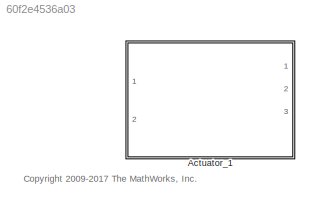
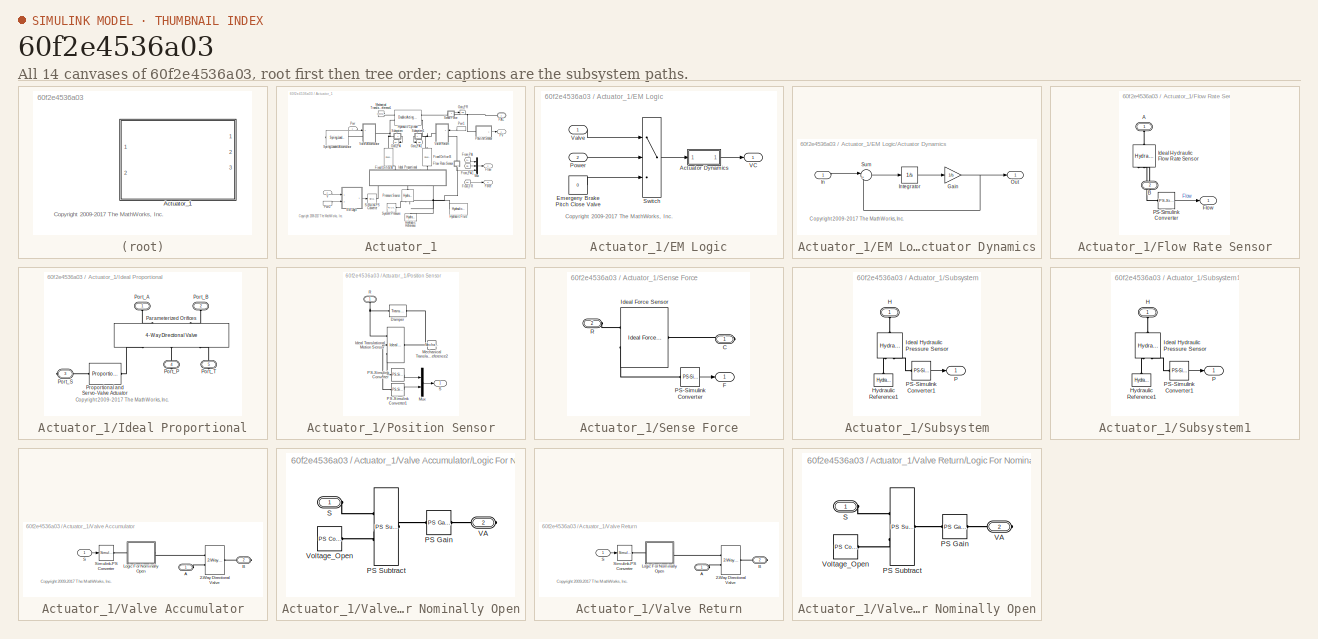
[diagram: thumbnail index - all 14 canvases of the model, root first then tree order]
MODEL slx_60f2e4536a03
KIND library
CONFIG AbsTol = auto
CONFIG EnableMultiTasking = on
CONFIG FixedStep = auto
CONFIG MaxStep = auto
CONFIG MinStep = auto
CONFIG RelTol = 1e-3
CONFIG SampleTimeConstraint = Unconstrained
CONFIG Solver = ode45
CONFIG SolverName = ode45
CONFIG StartTime = 0.0
CONFIG StopTime = 10.0
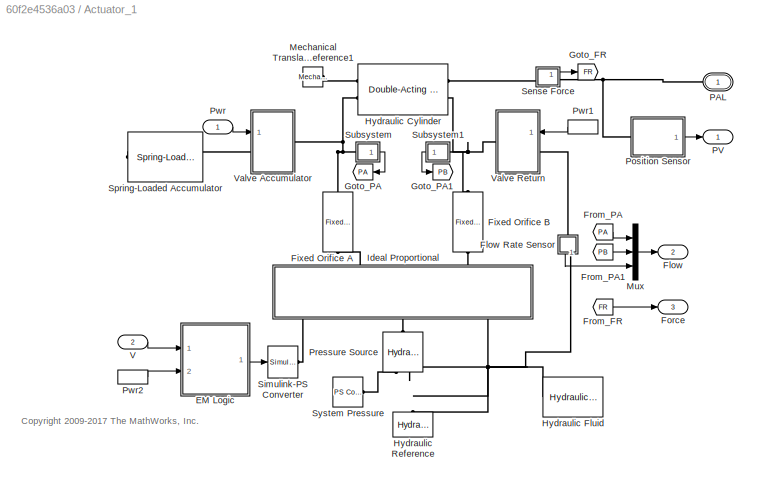
BLOCK [SubSystem] Actuator_1
  Ports = [2, 3, 0, 0, 0, 0, 1]
  RequestExecContextInheritance = off
  Variant = off
BLOCK [SubSystem] Actuator_1/EM Logic
  Ports = [2, 1]
  RequestExecContextInheritance = off
  Variant = off
BLOCK [SubSystem] Actuator_1/EM Logic/Actuator Dynamics
  Ports = [1, 1]
  RequestExecContextInheritance = off
  Variant = off
BLOCK [Gain] Actuator_1/EM Logic/Actuator Dynamics/Gain
  Gain = 1/b
  OutDataTypeStr = Inherit: Inherit via internal rule
  ParamDataTypeStr = Inherit: Inherit via internal rule
  SaturateOnIntegerOverflow = off
BLOCK [Inport] Actuator_1/EM Logic/Actuator Dynamics/In
  IconDisplay = Port number
BLOCK [Integrator] Actuator_1/EM Logic/Actuator Dynamics/Integrator
  InitialCondition = x_initial
  Ports = [1, 1]
BLOCK [Outport] Actuator_1/EM Logic/Actuator Dynamics/Out
  IconDisplay = Port number
BLOCK [Sum] Actuator_1/EM Logic/Actuator Dynamics/Sum
  IconShape = round
  Inputs = |+-
  Ports = [2, 1]
BLOCK [Constant] Actuator_1/EM Logic/Emergeny Brake Pitch Close Valve
  Value = 0
BLOCK [Inport] Actuator_1/EM Logic/Power
  IconDisplay = Port number
  Port = 2
BLOCK [Switch] Actuator_1/EM Logic/Switch
  Criteria = u2 > Threshold
  InputSameDT = off
  SaturateOnIntegerOverflow = off
BLOCK [Outport] Actuator_1/EM Logic/VC
  IconDisplay = Port number
BLOCK [Inport] Actuator_1/EM Logic/Valve
  IconDisplay = Port number
BLOCK [Reference] Actuator_1/Fixed Orifice A  REF=sh_lib/Orifices/Fixed Orifice
  Ports = [0, 0, 0, 0, 0, 1, 1]
  SourceBlock = sh_lib/Orifices/Fixed Orifice
  SourceProductBaseCode = SH
  SourceProductName = Simscape Fluids
  SourceType = Fixed Orifice
BLOCK [Reference] Actuator_1/Fixed Orifice B  REF=sh_lib/Orifices/Fixed Orifice
  Ports = [0, 0, 0, 0, 0, 1, 1]
  SourceBlock = sh_lib/Orifices/Fixed Orifice
  SourceProductBaseCode = SH
  SourceProductName = Simscape Fluids
  SourceType = Fixed Orifice
BLOCK [Outport] Actuator_1/Flow
  IconDisplay = Port number
  Port = 2
BLOCK [SubSystem] Actuator_1/Flow Rate Sensor
  Ports = [0, 1, 0, 0, 0, 1, 1]
  RequestExecContextInheritance = off
  Variant = off
BLOCK [PMIOPort] Actuator_1/Flow Rate Sensor/A
  Port = 1
  Side = Left
BLOCK [PMIOPort] Actuator_1/Flow Rate Sensor/B
  Port = 2
  Side = Right
BLOCK [Outport] Actuator_1/Flow Rate Sensor/Flow
  IconDisplay = Port number
BLOCK [Reference] Actuator_1/Flow Rate Sensor/Ideal Hydraulic Flow Rate Sensor  REF=fl_lib/Hydraulic/Hydraulic Sensors/Hydraulic Flow Rate
Sensor
  Ports = [0, 0, 0, 0, 0, 1, 3]
  SourceBlock = fl_lib/Hydraulic/Hydraulic Sensors/Hydraulic Flow Rate\nSensor
  SourceProductBaseCode = SS
  SourceProductName = Simscape
  SourceType = Hydraulic Flow Rate\nSensor
BLOCK [Reference] Actuator_1/Flow Rate Sensor/PS-Simulink Converter  REF=nesl_utility/PS-Simulink
Converter
  Ports = [0, 1, 0, 0, 0, 1]
  SourceBlock = nesl_utility/PS-Simulink\nConverter
  SourceProductBaseCode = SS
  SourceProductName = Simscape
  SourceType = PS-Simulink\nConverter
BLOCK [Outport] Actuator_1/Force
  IconDisplay = Port number
  Port = 3
BLOCK [From] Actuator_1/From_FR
  CloseFcn = tagdialog Close
  GotoTag = FR
BLOCK [From] Actuator_1/From_PA
  CloseFcn = tagdialog Close
  GotoTag = PA
BLOCK [From] Actuator_1/From_PA1
  CloseFcn = tagdialog Close
  GotoTag = PB
BLOCK [Goto] Actuator_1/Goto_FR
  GotoTag = FR
BLOCK [Goto] Actuator_1/Goto_PA
  GotoTag = PA
BLOCK [Goto] Actuator_1/Goto_PA1
  GotoTag = PB
BLOCK [Reference] Actuator_1/Hydraulic Cylinder  REF=sh_lib/Hydraulic Cylinders/Double-Acting
Hydraulic Cylinder
  Ports = [0, 0, 0, 0, 0, 2, 2]
  SourceBlock = sh_lib/Hydraulic Cylinders/Double-Acting\nHydraulic Cylinder
  SourceProductBaseCode = SH
  SourceProductName = Simscape Fluids
  SourceType = Double-Acting\nHydraulic Cylinder
BLOCK [Reference] Actuator_1/Hydraulic Fluid  REF=sh_lib/Hydraulic Utilities/Hydraulic Fluid
  Ports = [0, 0, 0, 0, 0, 0, 1]
  SourceBlock = sh_lib/Hydraulic Utilities/Hydraulic Fluid
  SourceProductBaseCode = SH
  SourceProductName = Simscape Fluids
  SourceType = Hydraulic Fluid
BLOCK [Reference] Actuator_1/Hydraulic Reference  REF=fl_lib/Hydraulic/Hydraulic Elements/Hydraulic Reference
  Ports = [0, 0, 0, 0, 0, 1]
  SourceBlock = fl_lib/Hydraulic/Hydraulic Elements/Hydraulic Reference
  SourceProductBaseCode = SS
  SourceProductName = Simscape
  SourceType = Hydraulic Reference
BLOCK [SubSystem] Actuator_1/Ideal Proportional
  Ports = [0, 0, 0, 0, 0, 2, 3]
  RequestExecContextInheritance = off
  Variant = off
BLOCK [Reference] Actuator_1/Ideal Proportional/Parameterized Orifices  REF=sh_lib/Valves/Directional Valves/4-Way Directional
Valve
  Ports = [0, 0, 0, 0, 0, 2, 3]
  SourceBlock = sh_lib/Valves/Directional Valves/4-Way Directional\nValve
  SourceProductBaseCode = SH
  SourceProductName = Simscape Fluids
  SourceType = 4-Way Directional\nValve
BLOCK [PMIOPort] Actuator_1/Ideal Proportional/Port_A
  Port = 1
  Side = Left
BLOCK [PMIOPort] Actuator_1/Ideal Proportional/Port_B
  Port = 2
  Side = Left
BLOCK [PMIOPort] Actuator_1/Ideal Proportional/Port_P
  Port = 4
  Side = Right
BLOCK [PMIOPort] Actuator_1/Ideal Proportional/Port_S
  Port = 3
  Side = Right
BLOCK [PMIOPort] Actuator_1/Ideal Proportional/Port_T
  Port = 5
  Side = Right
BLOCK [Reference] Actuator_1/Ideal Proportional/Proportional and Servo-Valve Actuator  REF=sh_lib/Valves/Valve Actuators/Proportional and
Servo-Valve Actuator
  Ports = [0, 0, 0, 0, 0, 1, 1]
  SourceBlock = sh_lib/Valves/Valve Actuators/Proportional and\nServo-Valve Actuator
  SourceProductBaseCode = SH
  SourceProductName = Simscape Fluids
  SourceType = Proportional and\nServo-Valve Actuator
BLOCK [Reference] Actuator_1/Mechanical Translational Reference1  REF=fl_lib/Mechanical/Translational
Elements/Mechanical
Translational
Reference
  Ports = [0, 0, 0, 0, 0, 1]
  SourceBlock = fl_lib/Mechanical/Translational\nElements/Mechanical\nTranslational\nReference
  SourceProductBaseCode = SS
  SourceProductName = Simscape
  SourceType = Mechanical\nTranslational\nReference
  Tag = Factory Generic
BLOCK [Mux] Actuator_1/Mux
  DisplayOption = bar
  Inputs = 3
  Ports = [3, 1]
BLOCK [PMIOPort] Actuator_1/PAL
  Port = 1
  Side = Right
  Tag = PMCPort
BLOCK [Outport] Actuator_1/PV
  IconDisplay = Port number
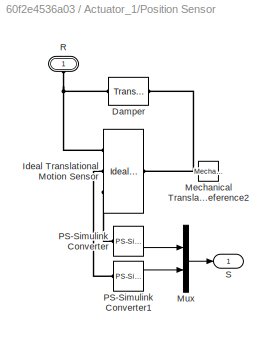
BLOCK [SubSystem] Actuator_1/Position Sensor
  Ports = [0, 1, 0, 0, 0, 1]
  RequestExecContextInheritance = off
  Variant = off
BLOCK [Reference] Actuator_1/Position Sensor/Damper  REF=fl_lib/Mechanical/Translational
Elements/Translational Damper
  Ports = [0, 0, 0, 0, 0, 1, 1]
  SourceBlock = fl_lib/Mechanical/Translational\nElements/Translational Damper
  SourceProductBaseCode = SS
  SourceProductName = Simscape
  SourceType = Translational Damper
BLOCK [Reference] Actuator_1/Position Sensor/Ideal Translational Motion Sensor  REF=fl_lib/Mechanical/Mechanical Sensors/Ideal Translational
Motion Sensor
  Ports = [0, 0, 0, 0, 0, 1, 3]
  SourceBlock = fl_lib/Mechanical/Mechanical Sensors/Ideal Translational\nMotion Sensor
  SourceProductBaseCode = SS
  SourceProductName = Simscape
  SourceType = Ideal Translational\nMotion Sensor
BLOCK [Reference] Actuator_1/Position Sensor/Mechanical Translational Reference2  REF=fl_lib/Mechanical/Translational
Elements/Mechanical
Translational
Reference
  Ports = [0, 0, 0, 0, 0, 1]
  SourceBlock = fl_lib/Mechanical/Translational\nElements/Mechanical\nTranslational\nReference
  SourceProductBaseCode = SS
  SourceProductName = Simscape
  SourceType = Mechanical\nTranslational\nReference
  Tag = Factory Generic
BLOCK [Mux] Actuator_1/Position Sensor/Mux
  DisplayOption = bar
  Inputs = 2
  Ports = [2, 1]
BLOCK [Reference] Actuator_1/Position Sensor/PS-Simulink Converter  REF=nesl_utility/PS-Simulink
Converter
  Ports = [0, 1, 0, 0, 0, 1]
  SourceBlock = nesl_utility/PS-Simulink\nConverter
  SourceProductBaseCode = SS
  SourceProductName = Simscape
  SourceType = PS-Simulink\nConverter
BLOCK [Reference] Actuator_1/Position Sensor/PS-Simulink Converter1  REF=nesl_utility/PS-Simulink
Converter
  Ports = [0, 1, 0, 0, 0, 1]
  SourceBlock = nesl_utility/PS-Simulink\nConverter
  SourceProductBaseCode = SS
  SourceProductName = Simscape
  SourceType = PS-Simulink\nConverter
BLOCK [PMIOPort] Actuator_1/Position Sensor/R
  Port = 1
  Side = Left
BLOCK [Outport] Actuator_1/Position Sensor/S
  IconDisplay = Port number
BLOCK [Reference] Actuator_1/Pressure Source  REF=fl_lib/Hydraulic/Hydraulic Sources/Hydraulic Pressure
Source
  Ports = [0, 0, 0, 0, 0, 1, 2]
  SourceBlock = fl_lib/Hydraulic/Hydraulic Sources/Hydraulic Pressure\nSource
  SourceProductBaseCode = SS
  SourceProductName = Simscape
  SourceType = Hydraulic Pressure\nSource
BLOCK [Inport] Actuator_1/Pwr
  IconDisplay = Port number
BLOCK [InportShadow] Actuator_1/Pwr1
  IconDisplay = Port number
BLOCK [InportShadow] Actuator_1/Pwr2
  IconDisplay = Port number
BLOCK [SubSystem] Actuator_1/Sense Force
  Ports = [0, 1, 0, 0, 0, 1, 1]
  RequestExecContextInheritance = off
  Variant = off
BLOCK [PMIOPort] Actuator_1/Sense Force/C
  Port = 1
  Side = Right
BLOCK [Outport] Actuator_1/Sense Force/F
  IconDisplay = Port number
BLOCK [Reference] Actuator_1/Sense Force/Ideal Force Sensor  REF=fl_lib/Mechanical/Mechanical Sensors/Ideal Force Sensor
  Ports = [0, 0, 0, 0, 0, 1, 2]
  SourceBlock = fl_lib/Mechanical/Mechanical Sensors/Ideal Force Sensor
  SourceProductBaseCode = SS
  SourceProductName = Simscape
  SourceType = Ideal Force Sensor
BLOCK [Reference] Actuator_1/Sense Force/PS-Simulink Converter  REF=nesl_utility/PS-Simulink
Converter
  Ports = [0, 1, 0, 0, 0, 1]
  SourceBlock = nesl_utility/PS-Simulink\nConverter
  SourceProductBaseCode = SS
  SourceProductName = Simscape
  SourceType = PS-Simulink\nConverter
BLOCK [PMIOPort] Actuator_1/Sense Force/R
  Port = 2
  Side = Left
BLOCK [Reference] Actuator_1/Simulink-PS Converter  REF=nesl_utility/Simulink-PS
Converter
  Ports = [1, 0, 0, 0, 0, 0, 1]
  SourceBlock = nesl_utility/Simulink-PS\nConverter
  SourceProductBaseCode = SS
  SourceProductName = Simscape
  SourceType = Simulink-PS\nConverter
BLOCK [Reference] Actuator_1/Spring-Loaded Accumulator  REF=sh_lib/Accumulators/Spring-Loaded
Accumulator
  Ports = [0, 0, 0, 0, 0, 0, 1]
  SourceBlock = sh_lib/Accumulators/Spring-Loaded\nAccumulator
  SourceProductBaseCode = SH
  SourceProductName = Simscape Fluids
  SourceType = Spring-Loaded\nAccumulator
BLOCK [SubSystem] Actuator_1/Subsystem
  Ports = [0, 1, 0, 0, 0, 1]
  RequestExecContextInheritance = off
  Variant = off
BLOCK [PMIOPort] Actuator_1/Subsystem/H
  Port = 1
  Side = Left
BLOCK [Reference] Actuator_1/Subsystem/Hydraulic Reference1  REF=fl_lib/Hydraulic/Hydraulic Elements/Hydraulic Reference
  Ports = [0, 0, 0, 0, 0, 1]
  SourceBlock = fl_lib/Hydraulic/Hydraulic Elements/Hydraulic Reference
  SourceProductBaseCode = SS
  SourceProductName = Simscape
  SourceType = Hydraulic Reference
BLOCK [Reference] Actuator_1/Subsystem/Ideal Hydraulic Pressure Sensor  REF=fl_lib/Hydraulic/Hydraulic Sensors/Hydraulic Pressure
Sensor
  Ports = [0, 0, 0, 0, 0, 1, 2]
  SourceBlock = fl_lib/Hydraulic/Hydraulic Sensors/Hydraulic Pressure\nSensor
  SourceProductBaseCode = SS
  SourceProductName = Simscape
  SourceType = Hydraulic Pressure\nSensor
BLOCK [Outport] Actuator_1/Subsystem/P
  IconDisplay = Port number
BLOCK [Reference] Actuator_1/Subsystem/PS-Simulink Converter1  REF=nesl_utility/PS-Simulink
Converter
  Ports = [0, 1, 0, 0, 0, 1]
  SourceBlock = nesl_utility/PS-Simulink\nConverter
  SourceProductBaseCode = SS
  SourceProductName = Simscape
  SourceType = PS-Simulink\nConverter
BLOCK [SubSystem] Actuator_1/Subsystem1
  Ports = [0, 1, 0, 0, 0, 1]
  RequestExecContextInheritance = off
  Variant = off
BLOCK [PMIOPort] Actuator_1/Subsystem1/H
  Port = 1
  Side = Left
BLOCK [Reference] Actuator_1/Subsystem1/Hydraulic Reference1  REF=fl_lib/Hydraulic/Hydraulic Elements/Hydraulic Reference
  Ports = [0, 0, 0, 0, 0, 1]
  SourceBlock = fl_lib/Hydraulic/Hydraulic Elements/Hydraulic Reference
  SourceProductBaseCode = SS
  SourceProductName = Simscape
  SourceType = Hydraulic Reference
BLOCK [Reference] Actuator_1/Subsystem1/Ideal Hydraulic Pressure Sensor  REF=fl_lib/Hydraulic/Hydraulic Sensors/Hydraulic Pressure
Sensor
  Ports = [0, 0, 0, 0, 0, 1, 2]
  SourceBlock = fl_lib/Hydraulic/Hydraulic Sensors/Hydraulic Pressure\nSensor
  SourceProductBaseCode = SS
  SourceProductName = Simscape
  SourceType = Hydraulic Pressure\nSensor
BLOCK [Outport] Actuator_1/Subsystem1/P
  IconDisplay = Port number
BLOCK [Reference] Actuator_1/Subsystem1/PS-Simulink Converter1  REF=nesl_utility/PS-Simulink
Converter
  Ports = [0, 1, 0, 0, 0, 1]
  SourceBlock = nesl_utility/PS-Simulink\nConverter
  SourceProductBaseCode = SS
  SourceProductName = Simscape
  SourceType = PS-Simulink\nConverter
BLOCK [Reference] Actuator_1/System Pressure  REF=fl_lib/Physical Signals/Sources/PS Constant
  Ports = [0, 0, 0, 0, 0, 0, 1]
  SourceBlock = fl_lib/Physical Signals/Sources/PS Constant
  SourceProductBaseCode = SS
  SourceProductName = Simscape
  SourceType = PS Constant
BLOCK [Inport] Actuator_1/V
  IconDisplay = Port number
  Port = 2
BLOCK [SubSystem] Actuator_1/Valve Accumulator
  Ports = [1, 0, 0, 0, 0, 1, 1]
  RequestExecContextInheritance = off
  Variant = off
BLOCK [Reference] Actuator_1/Valve Accumulator/2-Way Directional Valve  REF=sh_lib/Valves/Directional Valves/2-Way Directional
Valve
  Ports = [0, 0, 0, 0, 0, 2, 1]
  SourceBlock = sh_lib/Valves/Directional Valves/2-Way Directional\nValve
  SourceProductBaseCode = SH
  SourceProductName = Simscape Fluids
  SourceType = 2-Way Directional\nValve
BLOCK [PMIOPort] Actuator_1/Valve Accumulator/A
  Port = 1
  Side = Left
BLOCK [PMIOPort] Actuator_1/Valve Accumulator/B
  Port = 2
  Side = Right
BLOCK [SubSystem] Actuator_1/Valve Accumulator/Logic For Nominally Open
  Ports = [0, 0, 0, 0, 0, 1, 1]
  RequestExecContextInheritance = off
  Variant = off
BLOCK [Reference] Actuator_1/Valve Accumulator/Logic For Nominally Open/PS Gain  REF=fl_lib/Physical Signals/Functions/PS Gain
  Ports = [0, 0, 0, 0, 0, 1, 1]
  SourceBlock = fl_lib/Physical Signals/Functions/PS Gain
  SourceProductBaseCode = SS
  SourceProductName = Simscape
  SourceType = PS Gain
BLOCK [Reference] Actuator_1/Valve Accumulator/Logic For Nominally Open/PS Subtract  REF=fl_lib/Physical Signals/Functions/PS Subtract
  Ports = [0, 0, 0, 0, 0, 2, 1]
  SourceBlock = fl_lib/Physical Signals/Functions/PS Subtract
  SourceProductBaseCode = SS
  SourceProductName = Simscape
  SourceType = PS Subtract
BLOCK [PMIOPort] Actuator_1/Valve Accumulator/Logic For Nominally Open/S
  Port = 1
  Side = Left
BLOCK [PMIOPort] Actuator_1/Valve Accumulator/Logic For Nominally Open/VA
  Port = 2
  Side = Right
BLOCK [Reference] Actuator_1/Valve Accumulator/Logic For Nominally Open/Voltage_Open  REF=fl_lib/Physical Signals/Sources/PS Constant
  Ports = [0, 0, 0, 0, 0, 0, 1]
  SourceBlock = fl_lib/Physical Signals/Sources/PS Constant
  SourceProductBaseCode = SS
  SourceProductName = Simscape
  SourceType = PS Constant
BLOCK [Inport] Actuator_1/Valve Accumulator/S
  IconDisplay = Port number
BLOCK [Reference] Actuator_1/Valve Accumulator/Simulink-PS Converter  REF=nesl_utility/Simulink-PS
Converter
  Ports = [1, 0, 0, 0, 0, 0, 1]
  SourceBlock = nesl_utility/Simulink-PS\nConverter
  SourceProductBaseCode = SS
  SourceProductName = Simscape
  SourceType = Simulink-PS\nConverter
BLOCK [SubSystem] Actuator_1/Valve Return
  Ports = [1, 0, 0, 0, 0, 1, 1]
  RequestExecContextInheritance = off
  Variant = off
BLOCK [Reference] Actuator_1/Valve Return/2-Way Directional Valve  REF=sh_lib/Valves/Directional Valves/2-Way Directional
Valve
  Ports = [0, 0, 0, 0, 0, 2, 1]
  SourceBlock = sh_lib/Valves/Directional Valves/2-Way Directional\nValve
  SourceProductBaseCode = SH
  SourceProductName = Simscape Fluids
  SourceType = 2-Way Directional\nValve
BLOCK [PMIOPort] Actuator_1/Valve Return/A
  Port = 1
  Side = Left
BLOCK [PMIOPort] Actuator_1/Valve Return/B
  Port = 2
  Side = Right
BLOCK [SubSystem] Actuator_1/Valve Return/Logic For Nominally Open
  Ports = [0, 0, 0, 0, 0, 1, 1]
  RequestExecContextInheritance = off
  Variant = off
BLOCK [Reference] Actuator_1/Valve Return/Logic For Nominally Open/PS Gain  REF=fl_lib/Physical Signals/Functions/PS Gain
  Ports = [0, 0, 0, 0, 0, 1, 1]
  SourceBlock = fl_lib/Physical Signals/Functions/PS Gain
  SourceProductBaseCode = SS
  SourceProductName = Simscape
  SourceType = PS Gain
BLOCK [Reference] Actuator_1/Valve Return/Logic For Nominally Open/PS Subtract  REF=fl_lib/Physical Signals/Functions/PS Subtract
  Ports = [0, 0, 0, 0, 0, 2, 1]
  SourceBlock = fl_lib/Physical Signals/Functions/PS Subtract
  SourceProductBaseCode = SS
  SourceProductName = Simscape
  SourceType = PS Subtract
BLOCK [PMIOPort] Actuator_1/Valve Return/Logic For Nominally Open/S
  Port = 1
  Side = Left
BLOCK [PMIOPort] Actuator_1/Valve Return/Logic For Nominally Open/VA
  Port = 2
  Side = Right
BLOCK [Reference] Actuator_1/Valve Return/Logic For Nominally Open/Voltage_Open  REF=fl_lib/Physical Signals/Sources/PS Constant
  Ports = [0, 0, 0, 0, 0, 0, 1]
  SourceBlock = fl_lib/Physical Signals/Sources/PS Constant
  SourceProductBaseCode = SS
  SourceProductName = Simscape
  SourceType = PS Constant
BLOCK [Inport] Actuator_1/Valve Return/S
  IconDisplay = Port number
BLOCK [Reference] Actuator_1/Valve Return/Simulink-PS Converter  REF=nesl_utility/Simulink-PS
Converter
  Ports = [1, 0, 0, 0, 0, 0, 1]
  SourceBlock = nesl_utility/Simulink-PS\nConverter
  SourceProductBaseCode = SS
  SourceProductName = Simscape
  SourceType = Simulink-PS\nConverter
ANNOTATION (root): <copyright redacted>
ANNOTATION Actuator_1: <copyright redacted>
ANNOTATION Actuator_1/EM Logic: <copyright redacted>
ANNOTATION Actuator_1/EM Logic/Actuator Dynamics: <copyright redacted>
ANNOTATION Actuator_1/Ideal Proportional: <copyright redacted>
ANNOTATION Actuator_1/Valve Accumulator: <copyright redacted>
ANNOTATION Actuator_1/Valve Return: <copyright redacted>
NET Actuator_1/EM Logic/Actuator Dynamics/Gain:1 -> Actuator_1/EM Logic/Actuator Dynamics/Out:1, Actuator_1/EM Logic/Actuator Dynamics/Sum:2
LINE Actuator_1/EM Logic/Actuator Dynamics/In:1 -> Actuator_1/EM Logic/Actuator Dynamics/Sum:1
LINE Actuator_1/EM Logic/Actuator Dynamics/Integrator:1 -> Actuator_1/EM Logic/Actuator Dynamics/Gain:1
LINE Actuator_1/EM Logic/Actuator Dynamics/Sum:1 -> Actuator_1/EM Logic/Actuator Dynamics/Integrator:1
LINE Actuator_1/EM Logic/Actuator Dynamics:1 -> Actuator_1/EM Logic/VC:1
LINE Actuator_1/EM Logic/Emergeny Brake Pitch Close Valve:1 -> Actuator_1/EM Logic/Switch:3
LINE Actuator_1/EM Logic/Power:1 -> Actuator_1/EM Logic/Switch:2
LINE Actuator_1/EM Logic/Switch:1 -> Actuator_1/EM Logic/Actuator Dynamics:1
LINE Actuator_1/EM Logic/Valve:1 -> Actuator_1/EM Logic/Switch:1
LINE Actuator_1/EM Logic:1 -> Actuator_1/Simulink-PS Converter:1
LINE Actuator_1/Flow Rate Sensor/PS-Simulink Converter:1 -> Actuator_1/Flow Rate Sensor/Flow:1
LINE Actuator_1/Flow Rate Sensor:1 -> Actuator_1/Mux:3
LINE Actuator_1/From_FR:1 -> Actuator_1/Force:1
LINE Actuator_1/From_PA1:1 -> Actuator_1/Mux:2
LINE Actuator_1/From_PA:1 -> Actuator_1/Mux:1
LINE Actuator_1/Mux:1 -> Actuator_1/Flow:1
LINE Actuator_1/Position Sensor/Mux:1 -> Actuator_1/Position Sensor/S:1
LINE Actuator_1/Position Sensor/PS-Simulink Converter1:1 -> Actuator_1/Position Sensor/Mux:2
LINE Actuator_1/Position Sensor/PS-Simulink Converter:1 -> Actuator_1/Position Sensor/Mux:1
LINE Actuator_1/Position Sensor:1 -> Actuator_1/PV:1
LINE Actuator_1/Pwr1:1 -> Actuator_1/Valve Return:1
LINE Actuator_1/Pwr2:1 -> Actuator_1/EM Logic:2
LINE Actuator_1/Pwr:1 -> Actuator_1/Valve Accumulator:1
LINE Actuator_1/Sense Force/PS-Simulink Converter:1 -> Actuator_1/Sense Force/F:1
LINE Actuator_1/Sense Force:1 -> Actuator_1/Goto_FR:1
LINE Actuator_1/Subsystem/PS-Simulink Converter1:1 -> Actuator_1/Subsystem/P:1
LINE Actuator_1/Subsystem1/PS-Simulink Converter1:1 -> Actuator_1/Subsystem1/P:1
LINE Actuator_1/Subsystem1:1 -> Actuator_1/Goto_PA1:1
LINE Actuator_1/Subsystem:1 -> Actuator_1/Goto_PA:1
LINE Actuator_1/V:1 -> Actuator_1/EM Logic:1
LINE Actuator_1/Valve Accumulator/S:1 -> Actuator_1/Valve Accumulator/Simulink-PS Converter:1
LINE Actuator_1/Valve Return/S:1 -> Actuator_1/Valve Return/Simulink-PS Converter:1
PLINE Actuator_1/Fixed Orifice A:LConn1 -- Actuator_1/Ideal Proportional:LConn1
PNET net1: Actuator_1/Fixed Orifice A:RConn1 -- Actuator_1/Hydraulic Cylinder:LConn2 -- Actuator_1/Subsystem:LConn1 -- Actuator_1/Valve Accumulator:RConn1
PLINE Actuator_1/Fixed Orifice B:LConn1 -- Actuator_1/Ideal Proportional:LConn2
PNET net2: Actuator_1/Fixed Orifice B:RConn1 -- Actuator_1/Hydraulic Cylinder:RConn2 -- Actuator_1/Subsystem1:LConn1 -- Actuator_1/Valve Return:RConn1
PLINE Actuator_1/Flow Rate Sensor/A:RConn1 -- Actuator_1/Flow Rate Sensor/Ideal Hydraulic Flow Rate Sensor:LConn1
PLINE Actuator_1/Flow Rate Sensor/B:RConn1 -- Actuator_1/Flow Rate Sensor/Ideal Hydraulic Flow Rate Sensor:RConn2
PLINE Actuator_1/Flow Rate Sensor/Ideal Hydraulic Flow Rate Sensor:RConn1 -- Actuator_1/Flow Rate Sensor/PS-Simulink Converter:LConn1
PLINE Actuator_1/Flow Rate Sensor:LConn1 -- Actuator_1/Valve Return:LConn1
PNET net3: Actuator_1/Flow Rate Sensor:RConn1 -- Actuator_1/Hydraulic Fluid:RConn1 -- Actuator_1/Hydraulic Reference:LConn1 -- Actuator_1/Ideal Proportional:RConn3 -- Actuator_1/Pressure Source:RConn2
PLINE Actuator_1/Hydraulic Cylinder:LConn1 -- Actuator_1/Mechanical Translational Reference1:LConn1
PLINE Actuator_1/Hydraulic Cylinder:RConn1 -- Actuator_1/Sense Force:LConn1
PLINE Actuator_1/Ideal Proportional/Parameterized Orifices:LConn1 -- Actuator_1/Ideal Proportional/Port_A:RConn1
PLINE Actuator_1/Ideal Proportional/Parameterized Orifices:LConn2 -- Actuator_1/Ideal Proportional/Port_B:RConn1
PLINE Actuator_1/Ideal Proportional/Parameterized Orifices:RConn1 -- Actuator_1/Ideal Proportional/Proportional and Servo-Valve Actuator:RConn1
PLINE Actuator_1/Ideal Proportional/Parameterized Orifices:RConn2 -- Actuator_1/Ideal Proportional/Port_P:RConn1
PLINE Actuator_1/Ideal Proportional/Parameterized Orifices:RConn3 -- Actuator_1/Ideal Proportional/Port_T:RConn1
PLINE Actuator_1/Ideal Proportional/Port_S:RConn1 -- Actuator_1/Ideal Proportional/Proportional and Servo-Valve Actuator:LConn1
PLINE Actuator_1/Ideal Proportional:RConn1 -- Actuator_1/Simulink-PS Converter:RConn1
PLINE Actuator_1/Ideal Proportional:RConn2 -- Actuator_1/Pressure Source:LConn1
PNET net4: Actuator_1/PAL:RConn1 -- Actuator_1/Position Sensor:LConn1 -- Actuator_1/Sense Force:RConn1
PNET net5: Actuator_1/Position Sensor/Damper:LConn1 -- Actuator_1/Position Sensor/Ideal Translational Motion Sensor:RConn1 -- Actuator_1/Position Sensor/R:RConn1
PNET net6: Actuator_1/Position Sensor/Damper:RConn1 -- Actuator_1/Position Sensor/Ideal Translational Motion Sensor:LConn1 -- Actuator_1/Position Sensor/Mechanical Translational Reference2:LConn1
PLINE Actuator_1/Position Sensor/Ideal Translational Motion Sensor:RConn2 -- Actuator_1/Position Sensor/PS-Simulink Converter1:LConn1
PLINE Actuator_1/Position Sensor/Ideal Translational Motion Sensor:RConn3 -- Actuator_1/Position Sensor/PS-Simulink Converter:LConn1
PLINE Actuator_1/Pressure Source:RConn1 -- Actuator_1/System Pressure:RConn1
PLINE Actuator_1/Sense Force/C:RConn1 -- Actuator_1/Sense Force/Ideal Force Sensor:LConn1
PLINE Actuator_1/Sense Force/Ideal Force Sensor:RConn1 -- Actuator_1/Sense Force/R:RConn1
PLINE Actuator_1/Sense Force/Ideal Force Sensor:RConn2 -- Actuator_1/Sense Force/PS-Simulink Converter:LConn1
PLINE Actuator_1/Spring-Loaded Accumulator:RConn1 -- Actuator_1/Valve Accumulator:LConn1
PLINE Actuator_1/Subsystem/H:RConn1 -- Actuator_1/Subsystem/Ideal Hydraulic Pressure Sensor:LConn1
PLINE Actuator_1/Subsystem/Hydraulic Reference1:LConn1 -- Actuator_1/Subsystem/Ideal Hydraulic Pressure Sensor:RConn1
PLINE Actuator_1/Subsystem/Ideal Hydraulic Pressure Sensor:RConn2 -- Actuator_1/Subsystem/PS-Simulink Converter1:LConn1
PLINE Actuator_1/Subsystem1/H:RConn1 -- Actuator_1/Subsystem1/Ideal Hydraulic Pressure Sensor:LConn1
PLINE Actuator_1/Subsystem1/Hydraulic Reference1:LConn1 -- Actuator_1/Subsystem1/Ideal Hydraulic Pressure Sensor:RConn1
PLINE Actuator_1/Subsystem1/Ideal Hydraulic Pressure Sensor:RConn2 -- Actuator_1/Subsystem1/PS-Simulink Converter1:LConn1
PLINE Actuator_1/Valve Accumulator/2-Way Directional Valve:LConn1 -- Actuator_1/Valve Accumulator/Logic For Nominally Open:RConn1
PLINE Actuator_1/Valve Accumulator/2-Way Directional Valve:LConn2 -- Actuator_1/Valve Accumulator/A:RConn1
PLINE Actuator_1/Valve Accumulator/2-Way Directional Valve:RConn1 -- Actuator_1/Valve Accumulator/B:RConn1
PLINE Actuator_1/Valve Accumulator/Logic For Nominally Open/PS Gain:LConn1 -- Actuator_1/Valve Accumulator/Logic For Nominally Open/PS Subtract:RConn1
PLINE Actuator_1/Valve Accumulator/Logic For Nominally Open/PS Gain:RConn1 -- Actuator_1/Valve Accumulator/Logic For Nominally Open/VA:RConn1
PLINE Actuator_1/Valve Accumulator/Logic For Nominally Open/PS Subtract:LConn1 -- Actuator_1/Valve Accumulator/Logic For Nominally Open/S:RConn1
PLINE Actuator_1/Valve Accumulator/Logic For Nominally Open/PS Subtract:LConn2 -- Actuator_1/Valve Accumulator/Logic For Nominally Open/Voltage_Open:RConn1
PLINE Actuator_1/Valve Accumulator/Logic For Nominally Open:LConn1 -- Actuator_1/Valve Accumulator/Simulink-PS Converter:RConn1
PLINE Actuator_1/Valve Return/2-Way Directional Valve:LConn1 -- Actuator_1/Valve Return/Logic For Nominally Open:RConn1
PLINE Actuator_1/Valve Return/2-Way Directional Valve:LConn2 -- Actuator_1/Valve Return/A:RConn1
PLINE Actuator_1/Valve Return/2-Way Directional Valve:RConn1 -- Actuator_1/Valve Return/B:RConn1
PLINE Actuator_1/Valve Return/Logic For Nominally Open/PS Gain:LConn1 -- Actuator_1/Valve Return/Logic For Nominally Open/PS Subtract:RConn1
PLINE Actuator_1/Valve Return/Logic For Nominally Open/PS Gain:RConn1 -- Actuator_1/Valve Return/Logic For Nominally Open/VA:RConn1
PLINE Actuator_1/Valve Return/Logic For Nominally Open/PS Subtract:LConn1 -- Actuator_1/Valve Return/Logic For Nominally Open/S:RConn1
PLINE Actuator_1/Valve Return/Logic For Nominally Open/PS Subtract:LConn2 -- Actuator_1/Valve Return/Logic For Nominally Open/Voltage_Open:RConn1
PLINE Actuator_1/Valve Return/Logic For Nominally Open:LConn1 -- Actuator_1/Valve Return/Simulink-PS Converter:RConn1
note: NET lines group one-source signal fan-out (src -> all destinations, sorted); 1:1 wires keep LINE; PNET lines group multi-terminal physical nets as a canonical sorted terminal list (undirected conserving connections); 2-terminal nets keep the pairwise PLINE form
